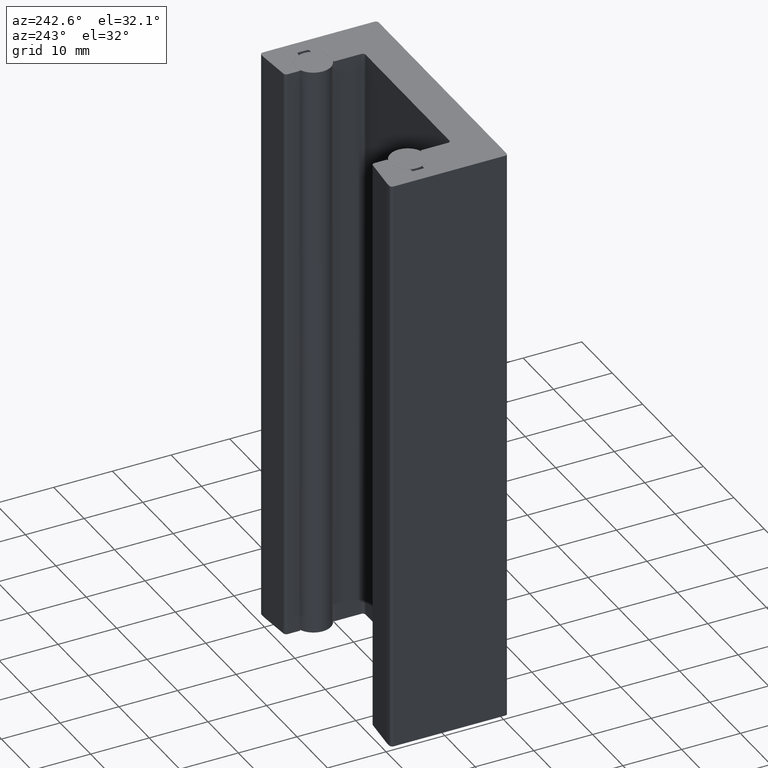
[diagram: clean part render]
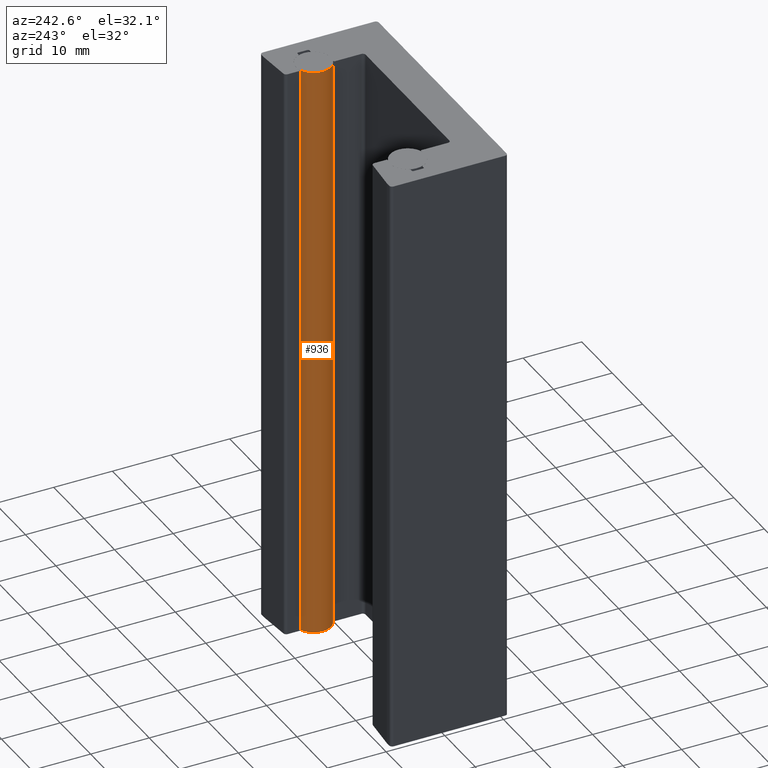
[diagram: same view with one face highlighted and labeled with its STEP entity id]
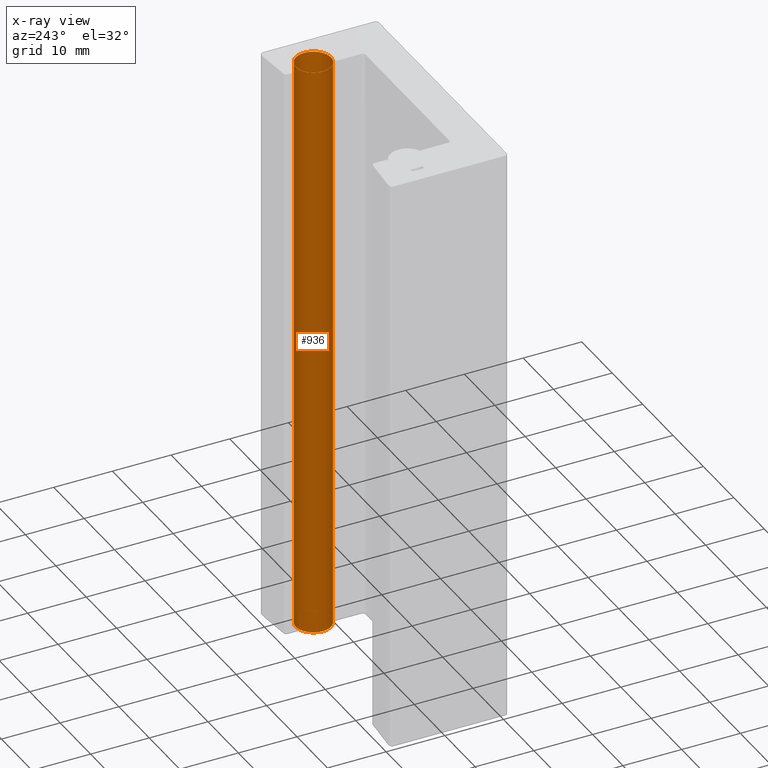
[diagram: x-ray of the same camera — body ghosted, the highlighted face saturated]
A machine part, auxiliary view. The second image highlights one B-rep face of the part: STEP entity #936.
The next image is the same camera in x-ray: the body ghosted, the highlighted face saturated — about 0% of this face is hidden behind the body in this view.
In plain terms, the highlighted cylindrical surface (bore or boss wall) has radius 3 mm, axis along (0, 0, 1).
Its self-contained STEP definition (entity closure, byte-faithful):
#100=FACE_OUTER_BOUND('',#149,.T.);
#149=EDGE_LOOP('',(#857,#858,#859,#860));
#231=LINE('',#1685,#312);
#312=VECTOR('',#1401,3.);
#365=CIRCLE('',#1104,3.);
#366=CIRCLE('',#1106,3.);
#455=VERTEX_POINT('',#1680);
#456=VERTEX_POINT('',#1683);
#589=EDGE_CURVE('',#455,#455,#365,.T.);
#590=EDGE_CURVE('',#456,#456,#366,.T.);
#591=EDGE_CURVE('',#456,#455,#231,.T.);
#857=ORIENTED_EDGE('',*,*,#590,.F.);
#858=ORIENTED_EDGE('',*,*,#591,.T.);
#859=ORIENTED_EDGE('',*,*,#589,.F.);
#860=ORIENTED_EDGE('',*,*,#591,.F.);
#888=CYLINDRICAL_SURFACE('',#1105,3.);
#936=ADVANCED_FACE('',(#100),#888,.T.);
#1104=AXIS2_PLACEMENT_3D('',#1681,#1395,#1396);
#1105=AXIS2_PLACEMENT_3D('',#1682,#1397,#1398);
#1106=AXIS2_PLACEMENT_3D('',#1684,#1399,#1400);
#1395=DIRECTION('center_axis',(0.,0.,-1.));
#1396=DIRECTION('ref_axis',(-1.,0.,0.));
#1397=DIRECTION('center_axis',(0.,0.,1.));
#1398=DIRECTION('ref_axis',(-1.,0.,0.));
#1399=DIRECTION('center_axis',(0.,0.,1.));
#1400=DIRECTION('ref_axis',(-1.,0.,0.));
#1401=DIRECTION('',(0.,0.,-1.));
#1680=CARTESIAN_POINT('',(3.,3.67394039744206E-16,-50.));
#1681=CARTESIAN_POINT('Origin',(0.,0.,-50.));
#1682=CARTESIAN_POINT('Origin',(0.,0.,0.));
#1683=CARTESIAN_POINT('',(3.,3.67394039744206E-16,50.));
#1684=CARTESIAN_POINT('Origin',(0.,0.,50.));
#1685=CARTESIAN_POINT('',(3.,3.67394039744206E-16,0.));